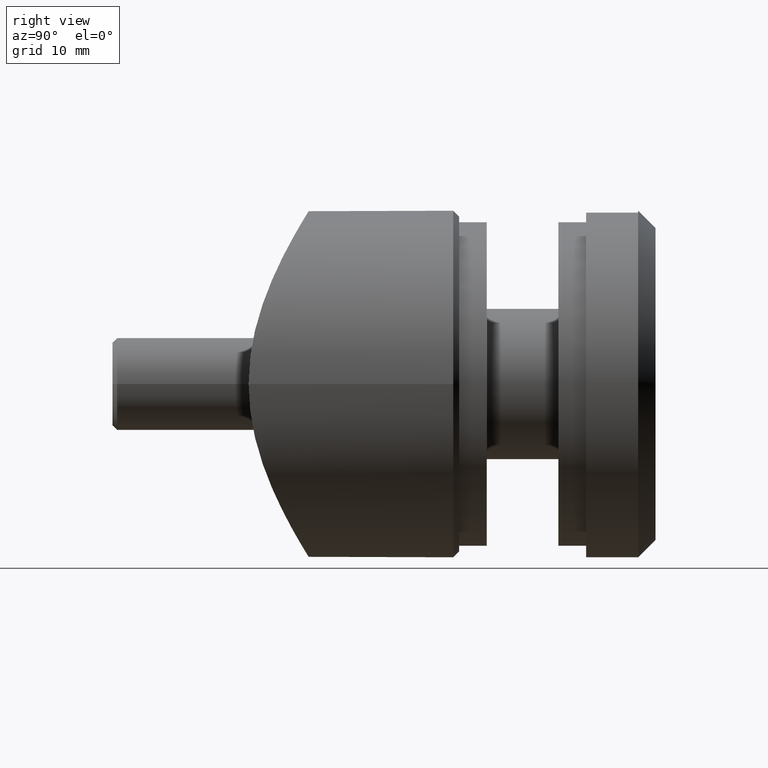
[diagram: clean part render]
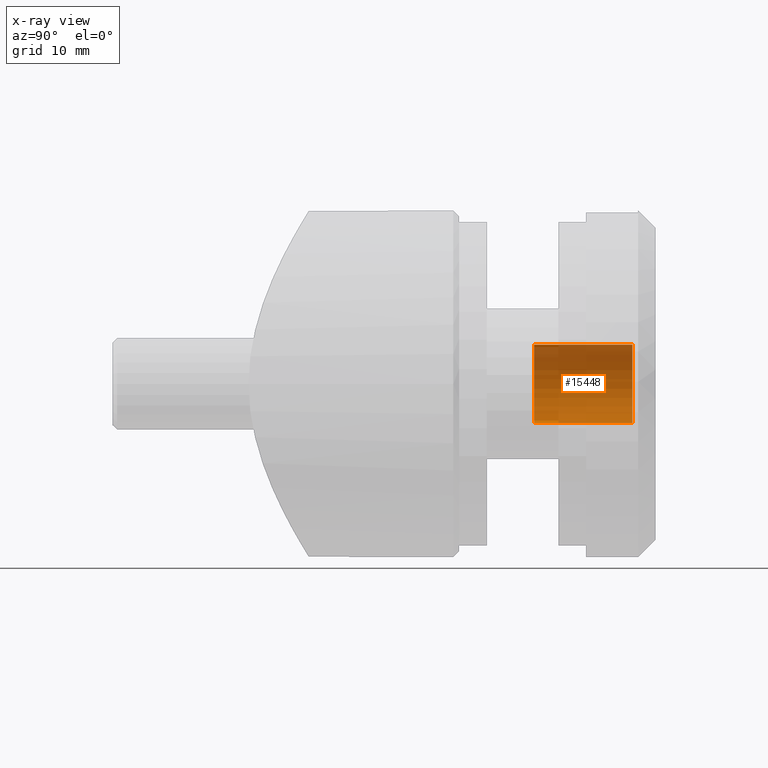
[diagram: x-ray — body ghosted, one internal face saturated and labeled with its STEP entity id]
A machine part, right view, then the same camera in x-ray: the body is ghosted and one INTERNAL B-rep face — a face not visible from any outside direction — is saturated and labeled: STEP entity #15448.
In plain terms, the highlighted cylindrical surface (partial cylindrical patch) has radius 3.4 mm, axis along (0, -1, 0).
Its self-contained STEP definition (entity closure, byte-faithful):
#682 = DIRECTION ( 'NONE',  ( 0.000000000000000000, -1.000000000000000000, 0.000000000000000000 ) ) ;
#1902 = CARTESIAN_POINT ( 'NONE',  ( 4.163799117100997601E-16, 0.5000000000000281997, 3.399999999999998135 ) ) ;
#2131 = CIRCLE ( 'NONE', #10684, 3.399999999999998135 ) ;
#2558 = VERTEX_POINT ( 'NONE', #6295 ) ;
#3074 = FACE_OUTER_BOUND ( 'NONE', #5964, .T. ) ;
#3458 = EDGE_CURVE ( 'NONE', #2558, #11787, #4178, .T. ) ;
#4056 = DIRECTION ( 'NONE',  ( 0.000000000000000000, -1.000000000000000000, 0.000000000000000000 ) ) ;
#4178 = LINE ( 'NONE', #10685, #9165 ) ;
#4276 = VERTEX_POINT ( 'NONE', #4950 ) ;
#4950 = CARTESIAN_POINT ( 'NONE',  ( 4.163799117100997601E-16, 9.000000000000021316, 3.399999999999997691 ) ) ;
#5289 = DIRECTION ( 'NONE',  ( 0.000000000000000000, -1.000000000000000000, 0.000000000000000000 ) ) ;
#5723 = DIRECTION ( 'NONE',  ( 0.000000000000000000, -1.000000000000000000, 0.000000000000000000 ) ) ;
#5964 = EDGE_LOOP ( 'NONE', ( #13650, #10664, #10958, #14264 ) ) ;
#6229 = DIRECTION ( 'NONE',  ( 0.000000000000000000, -1.000000000000000000, 0.000000000000000000 ) ) ;
#6295 = CARTESIAN_POINT ( 'NONE',  ( -1.084202172485504434E-16, 9.000000000000021316, -3.399999999999997691 ) ) ;
#6821 = EDGE_CURVE ( 'NONE', #4276, #2558, #13481, .T. ) ;
#8080 = AXIS2_PLACEMENT_3D ( 'NONE', #9909, #682, #9850 ) ;
#8756 = LINE ( 'NONE', #13567, #17035 ) ;
#8879 = VERTEX_POINT ( 'NONE', #1902 ) ;
#8896 = CYLINDRICAL_SURFACE ( 'NONE', #15754, 3.399999999999998135 ) ;
#9165 = VECTOR ( 'NONE', #5289, 1000.000000000000000 ) ;
#9850 = DIRECTION ( 'NONE',  ( 0.000000000000000000, 0.000000000000000000, -1.000000000000000000 ) ) ;
#9909 = CARTESIAN_POINT ( 'NONE',  ( -1.084202172485504434E-16, 9.000000000000021316, 0.000000000000000000 ) ) ;
#10623 = EDGE_CURVE ( 'NONE', #4276, #8879, #8756, .T. ) ;
#10664 = ORIENTED_EDGE ( 'NONE', *, *, #10623, .T. ) ;
#10684 = AXIS2_PLACEMENT_3D ( 'NONE', #13577, #5723, #16369 ) ;
#10685 = CARTESIAN_POINT ( 'NONE',  ( 0.000000000000000000, 0.000000000000000000, -3.399999999999998135 ) ) ;
#10958 = ORIENTED_EDGE ( 'NONE', *, *, #11457, .T. ) ;
#11457 = EDGE_CURVE ( 'NONE', #8879, #11787, #2131, .T. ) ;
#11501 = CARTESIAN_POINT ( 'NONE',  ( 0.000000000000000000, 0.000000000000000000, 0.000000000000000000 ) ) ;
#11787 = VERTEX_POINT ( 'NONE', #17216 ) ;
#13481 = CIRCLE ( 'NONE', #8080, 3.399999999999997691 ) ;
#13567 = CARTESIAN_POINT ( 'NONE',  ( 4.163799117100998094E-16, 0.000000000000000000, 3.399999999999998135 ) ) ;
#13577 = CARTESIAN_POINT ( 'NONE',  ( -1.084202172485504434E-16, 0.5000000000000281997, 0.000000000000000000 ) ) ;
#13650 = ORIENTED_EDGE ( 'NONE', *, *, #6821, .F. ) ;
#14264 = ORIENTED_EDGE ( 'NONE', *, *, #3458, .F. ) ;
#15448 = ADVANCED_FACE ( 'NONE', ( #3074 ), #8896, .F. ) ;
#15515 = DIRECTION ( 'NONE',  ( 0.000000000000000000, 0.000000000000000000, -1.000000000000000000 ) ) ;
#15754 = AXIS2_PLACEMENT_3D ( 'NONE', #11501, #6229, #15515 ) ;
#16369 = DIRECTION ( 'NONE',  ( 0.000000000000000000, 0.000000000000000000, -1.000000000000000000 ) ) ;
#17035 = VECTOR ( 'NONE', #4056, 1000.000000000000000 ) ;
#17216 = CARTESIAN_POINT ( 'NONE',  ( -1.084202172485504434E-16, 0.5000000000000281997, -3.399999999999998135 ) ) ;